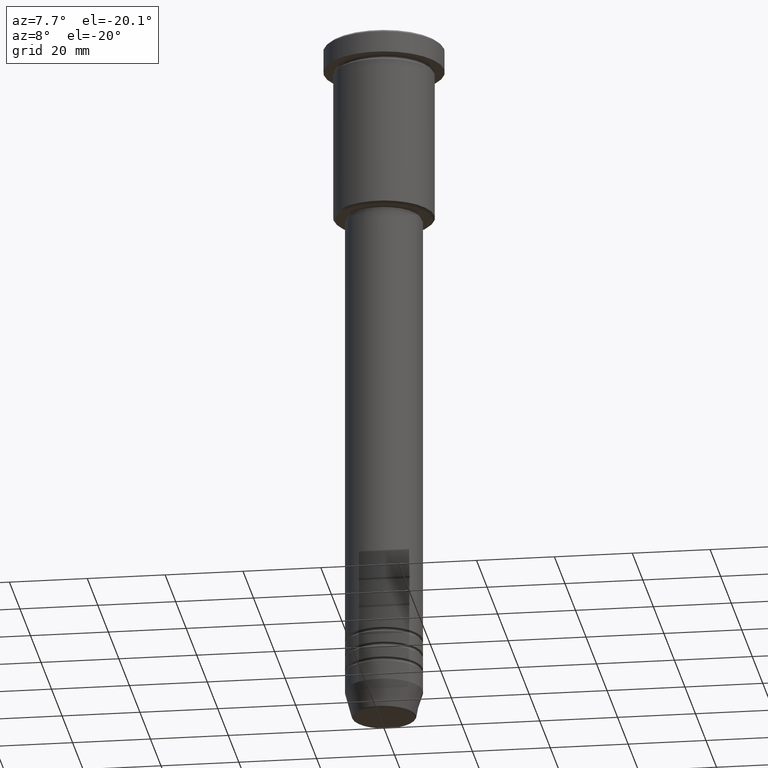
[diagram: clean part render]
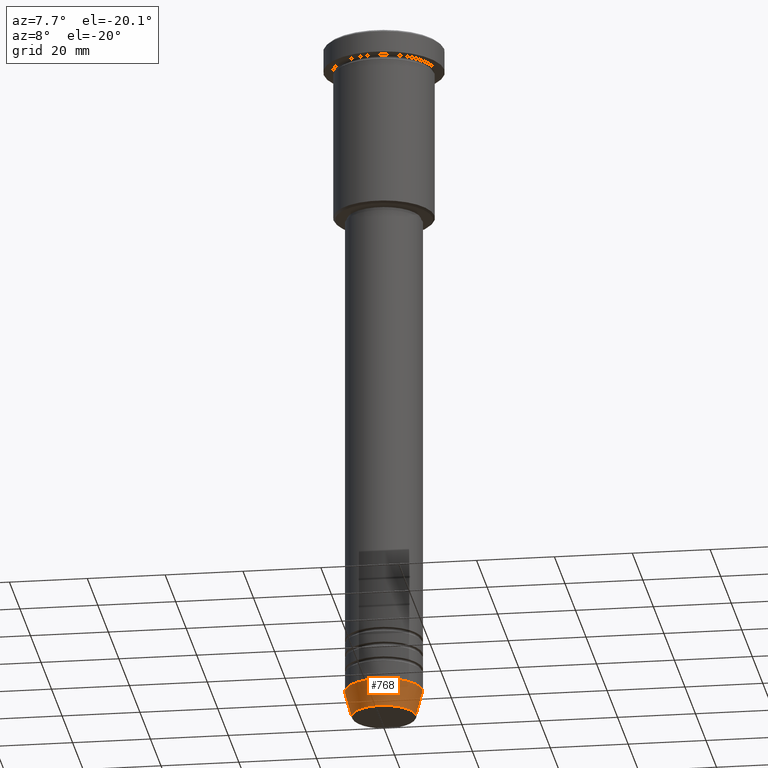
[diagram: same view with one face highlighted and labeled with its STEP entity id]
A machine part, auxiliary view. The second image highlights one B-rep face of the part: STEP entity #768.
In plain terms, the highlighted conical surface has half-angle 15 deg.
Its self-contained STEP definition (entity closure, byte-faithful):
#9 = CONICAL_SURFACE ( 'NONE', #677, 10.00000000000000000, 0.2617993877991497964 ) ;
#13 = EDGE_CURVE ( 'NONE', #476, #874, #431, .T. ) ;
#26 = ORIENTED_EDGE ( 'NONE', *, *, #178, .F. ) ;
#55 = CARTESIAN_POINT ( 'NONE',  ( 8.223655072137185940, 0.000000000000000000, -180.6294095225512990 ) ) ;
#92 = VECTOR ( 'NONE', #572, 1000.000000000000114 ) ;
#93 = VERTEX_POINT ( 'NONE', #143 ) ;
#141 = CARTESIAN_POINT ( 'NONE',  ( -8.223655072137185940, 1.115877042642911659E-15, -180.6294095225512990 ) ) ;
#143 = CARTESIAN_POINT ( 'NONE',  ( 10.00000000000000000, 0.000000000000000000, -174.0000000000000284 ) ) ;
#178 = EDGE_CURVE ( 'NONE', #447, #93, #312, .T. ) ;
#212 = CARTESIAN_POINT ( 'NONE',  ( 10.00000000000000000, 0.000000000000000000, -174.0000000000000284 ) ) ;
#241 = VECTOR ( 'NONE', #385, 1000.000000000000114 ) ;
#291 = AXIS2_PLACEMENT_3D ( 'NONE', #493, #578, #306 ) ;
#306 = DIRECTION ( 'NONE',  ( 1.000000000000000000, 0.000000000000000000, 0.000000000000000000 ) ) ;
#312 = CIRCLE ( 'NONE', #567, 10.00000000000000000 ) ;
#385 = DIRECTION ( 'NONE',  ( 0.2588190451025210725, 0.000000000000000000, 0.9659258262890680902 ) ) ;
#398 = DIRECTION ( 'NONE',  ( -0.000000000000000000, -0.000000000000000000, 1.000000000000000000 ) ) ;
#431 = CIRCLE ( 'NONE', #291, 8.223655072137185940 ) ;
#447 = VERTEX_POINT ( 'NONE', #886 ) ;
#476 = VERTEX_POINT ( 'NONE', #141 ) ;
#477 = LINE ( 'NONE', #212, #241 ) ;
#493 = CARTESIAN_POINT ( 'NONE',  ( 0.000000000000000000, 0.000000000000000000, -180.6294095225512990 ) ) ;
#564 = CARTESIAN_POINT ( 'NONE',  ( -10.00000000000000000, 1.224646799147353256E-15, -174.0000000000000284 ) ) ;
#567 = AXIS2_PLACEMENT_3D ( 'NONE', #1089, #1163, #642 ) ;
#572 = DIRECTION ( 'NONE',  ( -0.2588190451025210725, 3.169619151431769255E-17, 0.9659258262890680902 ) ) ;
#578 = DIRECTION ( 'NONE',  ( -0.000000000000000000, -0.000000000000000000, 1.000000000000000000 ) ) ;
#579 = ORIENTED_EDGE ( 'NONE', *, *, #806, .T. ) ;
#642 = DIRECTION ( 'NONE',  ( 1.000000000000000000, 0.000000000000000000, 0.000000000000000000 ) ) ;
#664 = CARTESIAN_POINT ( 'NONE',  ( 0.000000000000000000, 0.000000000000000000, -174.0000000000000284 ) ) ;
#677 = AXIS2_PLACEMENT_3D ( 'NONE', #664, #398, #1028 ) ;
#768 = ADVANCED_FACE ( 'NONE', ( #1102 ), #9, .T. ) ;
#801 = ORIENTED_EDGE ( 'NONE', *, *, #1052, .F. ) ;
#806 = EDGE_CURVE ( 'NONE', #874, #93, #477, .T. ) ;
#874 = VERTEX_POINT ( 'NONE', #55 ) ;
#886 = CARTESIAN_POINT ( 'NONE',  ( -10.00000000000000000, 1.224646799147353256E-15, -174.0000000000000284 ) ) ;
#920 = ORIENTED_EDGE ( 'NONE', *, *, #13, .T. ) ;
#1016 = LINE ( 'NONE', #564, #92 ) ;
#1028 = DIRECTION ( 'NONE',  ( 1.000000000000000000, 0.000000000000000000, 0.000000000000000000 ) ) ;
#1052 = EDGE_CURVE ( 'NONE', #476, #447, #1016, .T. ) ;
#1089 = CARTESIAN_POINT ( 'NONE',  ( 0.000000000000000000, 0.000000000000000000, -174.0000000000000284 ) ) ;
#1101 = EDGE_LOOP ( 'NONE', ( #801, #920, #579, #26 ) ) ;
#1102 = FACE_OUTER_BOUND ( 'NONE', #1101, .T. ) ;
#1163 = DIRECTION ( 'NONE',  ( -0.000000000000000000, -0.000000000000000000, 1.000000000000000000 ) ) ;